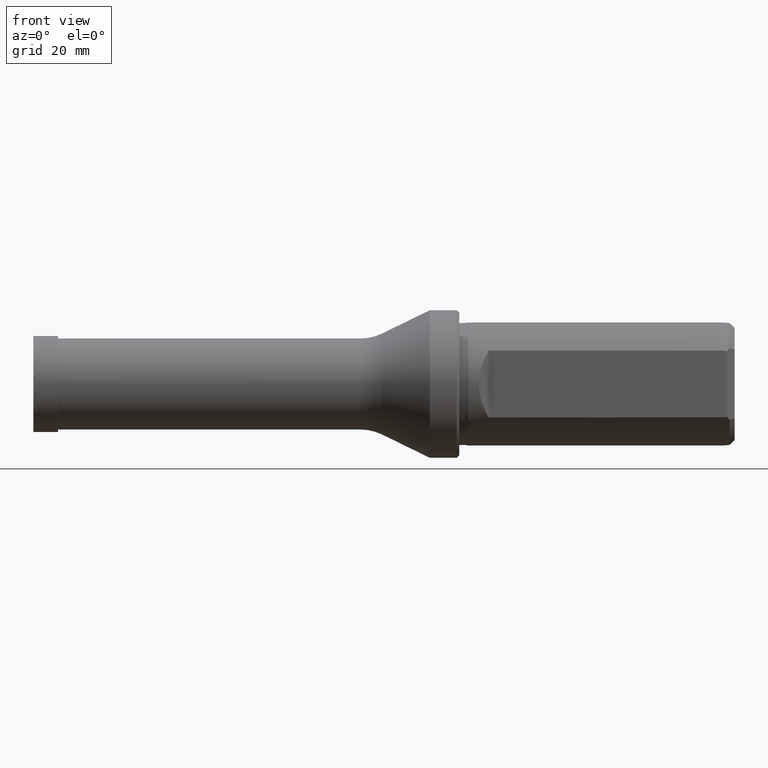
[diagram: clean part render]
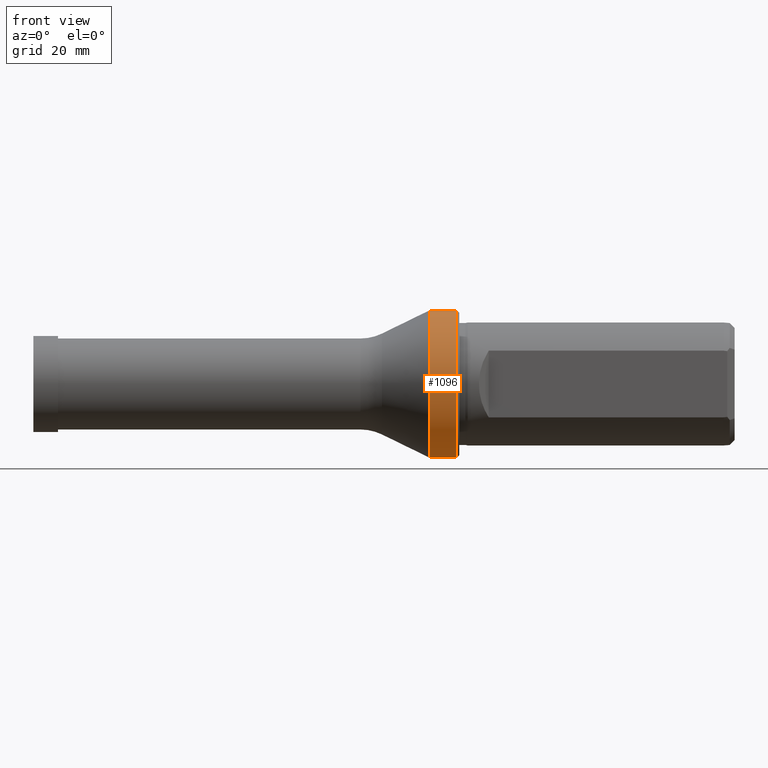
[diagram: same view with one face highlighted and labeled with its STEP entity id]
A machine part, front view. The second image highlights one B-rep face of the part: STEP entity #1096.
In plain terms, the highlighted cylindrical surface (partial cylindrical patch) has radius 15 mm, axis along (-1, -0, -0).
Its self-contained STEP definition (entity closure, byte-faithful):
#104 = CARTESIAN_POINT ( 'NONE',  ( 80.10000000000000900, 0.0000000000000000000, -14.99999999999999800 ) ) ;
#125 = VERTEX_POINT ( 'NONE', #644 ) ;
#198 = EDGE_CURVE ( 'NONE', #603, #1227, #346, .T. ) ;
#199 = EDGE_CURVE ( 'NONE', #125, #1031, #765, .T. ) ;
#274 = VECTOR ( 'NONE', #647, 1000.000000000000000 ) ;
#279 = VECTOR ( 'NONE', #337, 1000.000000000000000 ) ;
#326 = CARTESIAN_POINT ( 'NONE',  ( 0.0000000000000000000, 0.0000000000000000000, 15.00000000000000000 ) ) ;
#334 = DIRECTION ( 'NONE',  ( -1.000000000000000000, -0.0000000000000000000, -0.0000000000000000000 ) ) ;
#337 = DIRECTION ( 'NONE',  ( -1.000000000000000000, -0.0000000000000000000, -0.0000000000000000000 ) ) ;
#346 = LINE ( 'NONE', #326, #274 ) ;
#354 = DIRECTION ( 'NONE',  ( 0.0000000000000000000, 0.0000000000000000000, 1.000000000000000000 ) ) ;
#367 = CARTESIAN_POINT ( 'NONE',  ( 85.60000000000003700, 0.0000000000000000000, 15.00000000000000000 ) ) ;
#376 = ORIENTED_EDGE ( 'NONE', *, *, #516, .T. ) ;
#435 = CARTESIAN_POINT ( 'NONE',  ( 0.0000000000000000000, 1.836970198721029600E-015, -15.00000000000000000 ) ) ;
#514 = EDGE_CURVE ( 'NONE', #1031, #1227, #704, .T. ) ;
#516 = EDGE_CURVE ( 'NONE', #125, #603, #669, .T. ) ;
#518 = CARTESIAN_POINT ( 'NONE',  ( 80.10000000000000900, 1.836970198721029600E-015, 14.99999999999999800 ) ) ;
#530 = CYLINDRICAL_SURFACE ( 'NONE', #1196, 15.00000000000000000 ) ;
#575 = FACE_OUTER_BOUND ( 'NONE', #763, .T. ) ;
#603 = VERTEX_POINT ( 'NONE', #367 ) ;
#644 = CARTESIAN_POINT ( 'NONE',  ( 85.60000000000003700, 1.836970198721029600E-015, -15.00000000000000000 ) ) ;
#647 = DIRECTION ( 'NONE',  ( -1.000000000000000000, -0.0000000000000000000, -0.0000000000000000000 ) ) ;
#669 = CIRCLE ( 'NONE', #1173, 15.00000000000000000 ) ;
#704 = CIRCLE ( 'NONE', #1117, 14.99999999999999800 ) ;
#763 = EDGE_LOOP ( 'NONE', ( #972, #376, #1128, #848 ) ) ;
#765 = LINE ( 'NONE', #435, #279 ) ;
#816 = DIRECTION ( 'NONE',  ( 0.0000000000000000000, 0.0000000000000000000, 1.000000000000000000 ) ) ;
#820 = DIRECTION ( 'NONE',  ( -1.000000000000000000, -0.0000000000000000000, -0.0000000000000000000 ) ) ;
#829 = CARTESIAN_POINT ( 'NONE',  ( 85.60000000000003700, 0.0000000000000000000, 0.0000000000000000000 ) ) ;
#842 = DIRECTION ( 'NONE',  ( 0.0000000000000000000, 0.0000000000000000000, 1.000000000000000000 ) ) ;
#845 = DIRECTION ( 'NONE',  ( -1.000000000000000000, -0.0000000000000000000, -0.0000000000000000000 ) ) ;
#848 = ORIENTED_EDGE ( 'NONE', *, *, #514, .F. ) ;
#855 = CARTESIAN_POINT ( 'NONE',  ( 80.10000000000000900, 0.0000000000000000000, 0.0000000000000000000 ) ) ;
#972 = ORIENTED_EDGE ( 'NONE', *, *, #199, .F. ) ;
#991 = CARTESIAN_POINT ( 'NONE',  ( 0.0000000000000000000, 0.0000000000000000000, 0.0000000000000000000 ) ) ;
#1031 = VERTEX_POINT ( 'NONE', #104 ) ;
#1096 = ADVANCED_FACE ( 'NONE', ( #575 ), #530, .T. ) ;
#1117 = AXIS2_PLACEMENT_3D ( 'NONE', #855, #845, #842 ) ;
#1128 = ORIENTED_EDGE ( 'NONE', *, *, #198, .T. ) ;
#1173 = AXIS2_PLACEMENT_3D ( 'NONE', #829, #820, #816 ) ;
#1196 = AXIS2_PLACEMENT_3D ( 'NONE', #991, #334, #354 ) ;
#1227 = VERTEX_POINT ( 'NONE', #518 ) ;